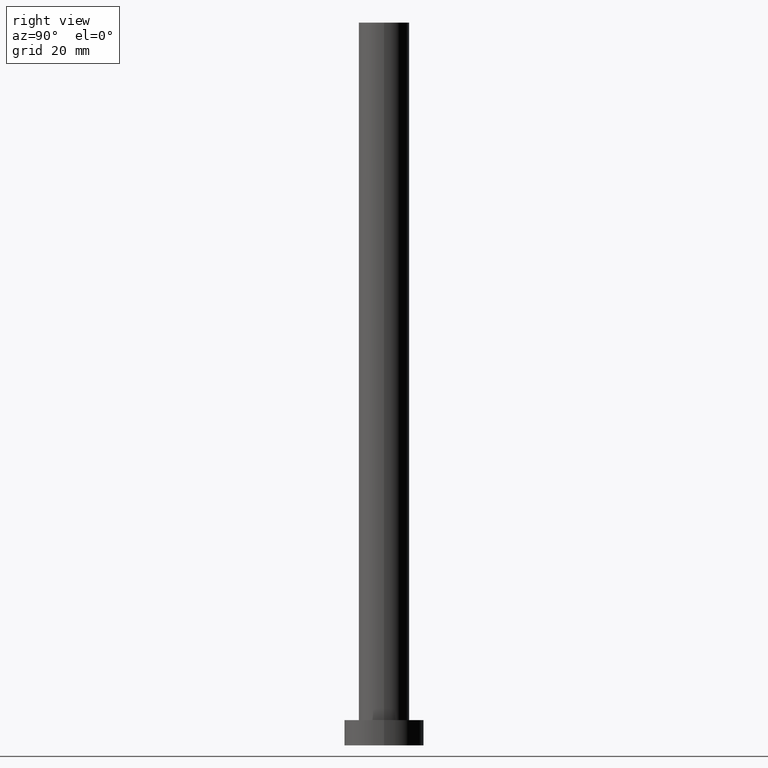
[diagram: clean part render]
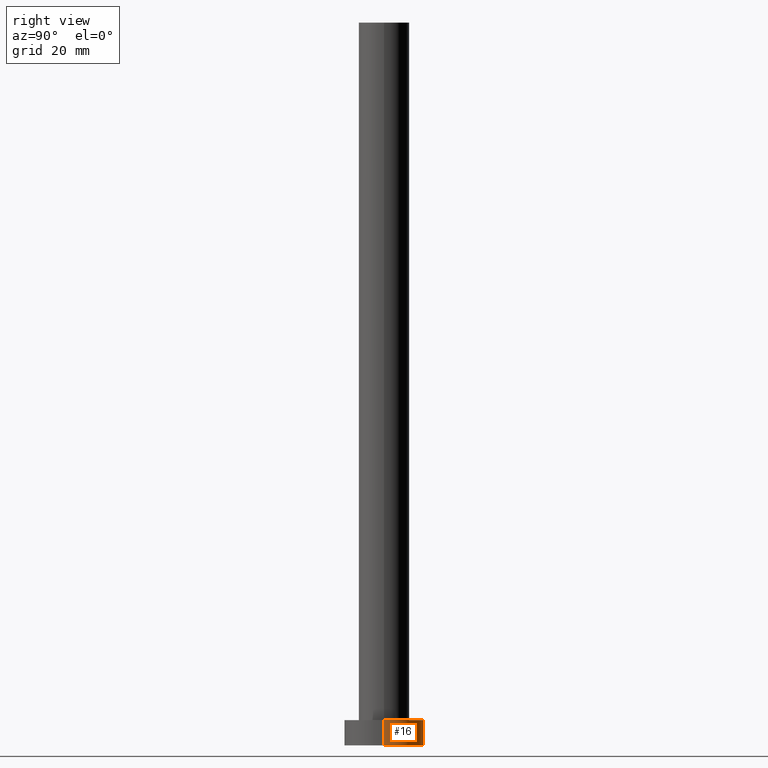
[diagram: same view with one face highlighted and labeled with its STEP entity id]
A machine part, right view. The second image highlights one B-rep face of the part: STEP entity #16.
In plain terms, the highlighted cylindrical surface (partial cylindrical patch) has radius 11 mm, axis along (-0, -0, -1).
Its self-contained STEP definition (entity closure, byte-faithful):
#5 = EDGE_CURVE ( 'NONE', #197, #104, #47, .T. ) ;
#16 = ADVANCED_FACE ( 'NONE', ( #187 ), #142, .T. ) ;
#19 = ORIENTED_EDGE ( 'NONE', *, *, #5, .T. ) ;
#32 = CARTESIAN_POINT ( 'NONE',  ( 0.000000000000000000, 0.000000000000000000, 0.000000000000000000 ) ) ;
#39 = DIRECTION ( 'NONE',  ( 0.000000000000000000, 0.000000000000000000, 1.000000000000000000 ) ) ;
#47 = LINE ( 'NONE', #254, #96 ) ;
#55 = CIRCLE ( 'NONE', #87, 11.00000000000000000 ) ;
#59 = ORIENTED_EDGE ( 'NONE', *, *, #181, .F. ) ;
#67 = CARTESIAN_POINT ( 'NONE',  ( 0.000000000000000000, 0.000000000000000000, 7.000000000000000000 ) ) ;
#68 = CARTESIAN_POINT ( 'NONE',  ( 11.00000000000000000, 1.347111479062088405E-15, 0.000000000000000000 ) ) ;
#72 = CARTESIAN_POINT ( 'NONE',  ( -11.00000000000000000, 0.000000000000000000, 7.000000000000000000 ) ) ;
#76 = CARTESIAN_POINT ( 'NONE',  ( 0.000000000000000000, 0.000000000000000000, 7.000000000000000000 ) ) ;
#79 = CARTESIAN_POINT ( 'NONE',  ( -11.00000000000000000, 0.000000000000000000, 7.000000000000000000 ) ) ;
#86 = ORIENTED_EDGE ( 'NONE', *, *, #155, .T. ) ;
#87 = AXIS2_PLACEMENT_3D ( 'NONE', #32, #112, #93 ) ;
#93 = DIRECTION ( 'NONE',  ( 1.000000000000000000, 0.000000000000000000, 0.000000000000000000 ) ) ;
#96 = VECTOR ( 'NONE', #161, 1000.000000000000000 ) ;
#104 = VERTEX_POINT ( 'NONE', #68 ) ;
#112 = DIRECTION ( 'NONE',  ( 0.000000000000000000, 0.000000000000000000, 1.000000000000000000 ) ) ;
#121 = ORIENTED_EDGE ( 'NONE', *, *, #157, .F. ) ;
#138 = VERTEX_POINT ( 'NONE', #72 ) ;
#142 = CYLINDRICAL_SURFACE ( 'NONE', #250, 11.00000000000000000 ) ;
#155 = EDGE_CURVE ( 'NONE', #104, #232, #55, .T. ) ;
#157 = EDGE_CURVE ( 'NONE', #197, #138, #231, .T. ) ;
#161 = DIRECTION ( 'NONE',  ( -0.000000000000000000, -0.000000000000000000, -1.000000000000000000 ) ) ;
#173 = AXIS2_PLACEMENT_3D ( 'NONE', #76, #39, #255 ) ;
#181 = EDGE_CURVE ( 'NONE', #138, #232, #198, .T. ) ;
#187 = FACE_OUTER_BOUND ( 'NONE', #238, .T. ) ;
#196 = CARTESIAN_POINT ( 'NONE',  ( -11.00000000000000000, 0.000000000000000000, 0.000000000000000000 ) ) ;
#197 = VERTEX_POINT ( 'NONE', #237 ) ;
#198 = LINE ( 'NONE', #79, #208 ) ;
#205 = DIRECTION ( 'NONE',  ( -0.000000000000000000, -0.000000000000000000, -1.000000000000000000 ) ) ;
#208 = VECTOR ( 'NONE', #234, 1000.000000000000000 ) ;
#231 = CIRCLE ( 'NONE', #173, 11.00000000000000000 ) ;
#232 = VERTEX_POINT ( 'NONE', #196 ) ;
#234 = DIRECTION ( 'NONE',  ( -0.000000000000000000, -0.000000000000000000, -1.000000000000000000 ) ) ;
#236 = DIRECTION ( 'NONE',  ( -1.000000000000000000, 0.000000000000000000, 0.000000000000000000 ) ) ;
#237 = CARTESIAN_POINT ( 'NONE',  ( 11.00000000000000000, 1.347111479062088405E-15, 7.000000000000000000 ) ) ;
#238 = EDGE_LOOP ( 'NONE', ( #121, #19, #86, #59 ) ) ;
#250 = AXIS2_PLACEMENT_3D ( 'NONE', #67, #205, #236 ) ;
#254 = CARTESIAN_POINT ( 'NONE',  ( 11.00000000000000000, 1.347111479062088405E-15, 7.000000000000000000 ) ) ;
#255 = DIRECTION ( 'NONE',  ( 1.000000000000000000, 0.000000000000000000, 0.000000000000000000 ) ) ;